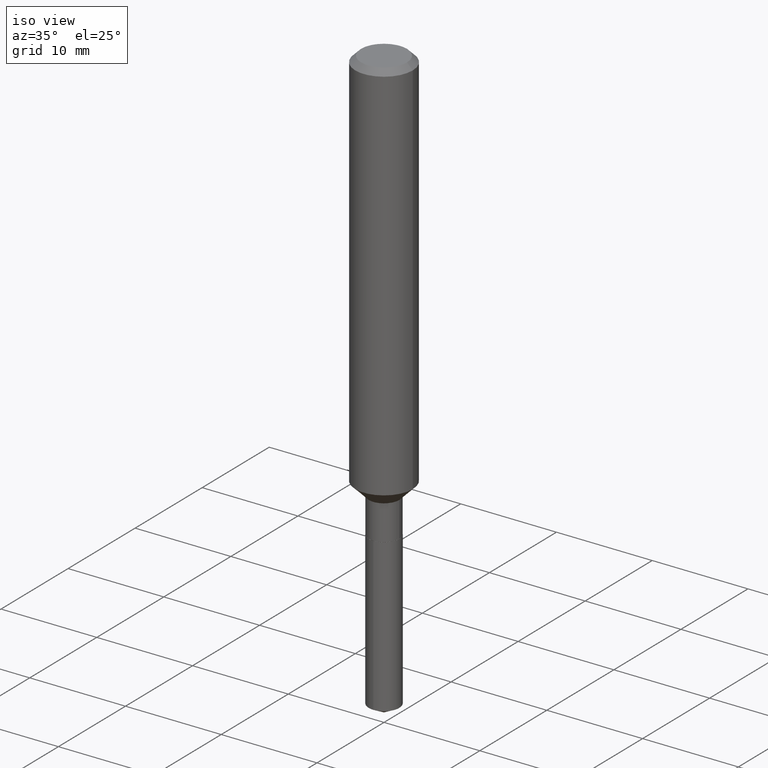
[diagram: clean part render]
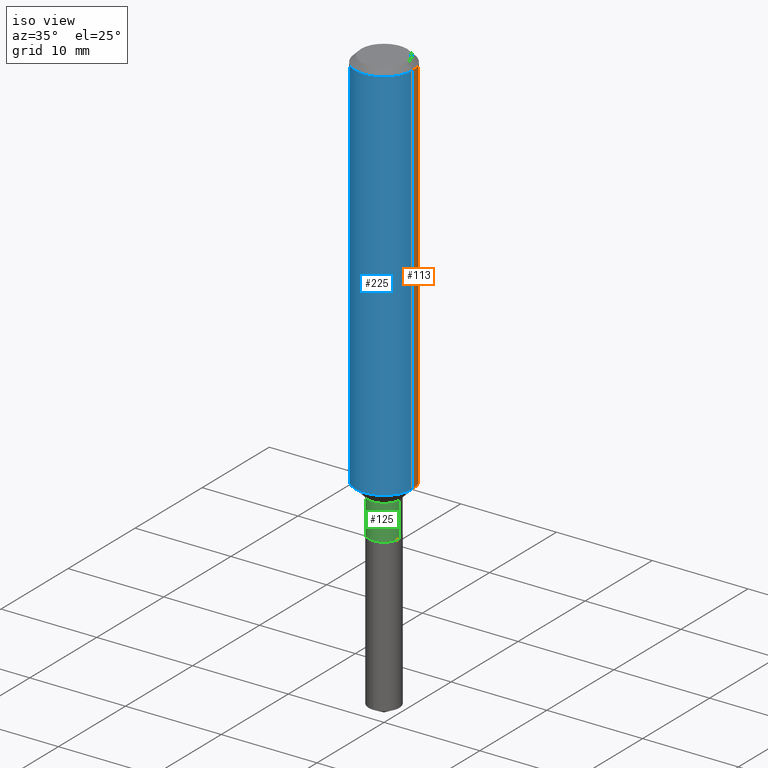
[diagram: same view with three faces highlighted in distinct colors, each labeled with its STEP entity id]
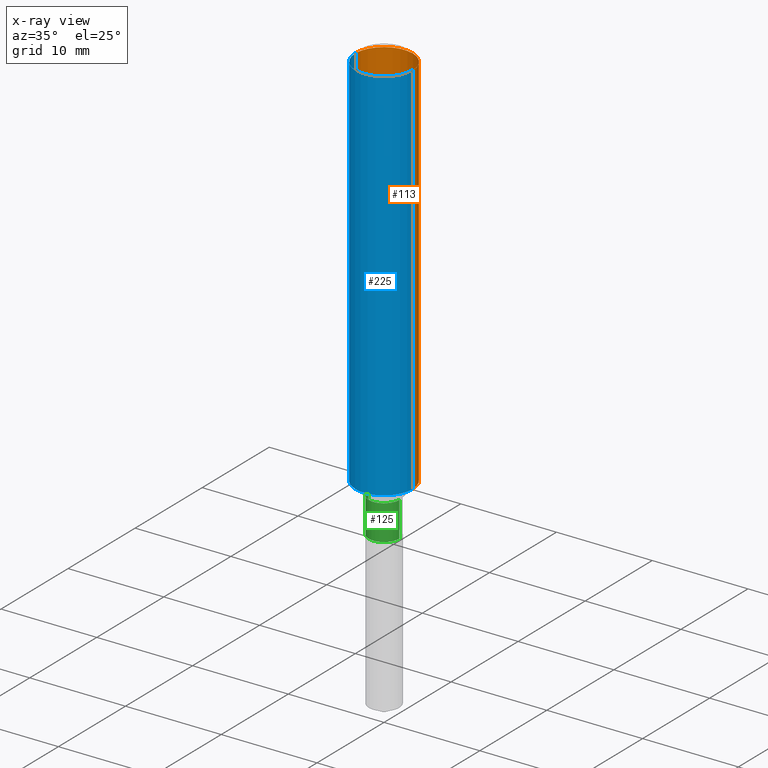
[diagram: x-ray of the same camera — body ghosted, the three highlighted faces saturated]
A machine part, iso view with three faces highlighted in distinct colors.
The next image is the same camera in x-ray (body ghosted, the three faces saturated) — at least one of them is partly hidden behind the body in this view.
Their STEP definitions:

[orange] entity #113 — the highlighted cylindrical surface (edge-blend (fillet) strip) has radius 2.9997 mm, axis along (-0, 0, 1).
#17 = CARTESIAN_POINT ( 'NONE',  ( 5.776197320209327532E-31, -8.246878922347559293E-17, -0.02362000000000014088 ) ) ;
#32 = VERTEX_POINT ( 'NONE', #395 ) ;
#42 = CARTESIAN_POINT ( 'NONE',  ( -0.1180999999999999966, -1.959480811030432098E-15, -0.02362000000000014088 ) ) ;
#47 = VECTOR ( 'NONE', #169, 39.37007874015748143 ) ;
#51 = ORIENTED_EDGE ( 'NONE', *, *, #286, .T. ) ;
#113 = ADVANCED_FACE ( 'NONE', ( #216 ), #428, .T. ) ;
#141 = ORIENTED_EDGE ( 'NONE', *, *, #407, .F. ) ;
#155 = LINE ( 'NONE', #436, #471 ) ;
#156 = CARTESIAN_POINT ( 'NONE',  ( 0.000000000000000000, 0.000000000000000000, 0.000000000000000000 ) ) ;
#167 = ORIENTED_EDGE ( 'NONE', *, *, #410, .T. ) ;
#169 = DIRECTION ( 'NONE',  ( -2.445468806185136877E-29, 3.491481338843145188E-15, 1.000000000000000000 ) ) ;
#175 = DIRECTION ( 'NONE',  ( 1.000000000000000000, -6.982962677686266711E-15, 4.876176775795936353E-29 ) ) ;
#213 = DIRECTION ( 'NONE',  ( -2.445468806185136597E-29, 3.491481338843145583E-15, 1.000000000000000000 ) ) ;
#216 = FACE_OUTER_BOUND ( 'NONE', #439, .T. ) ;
#230 = ORIENTED_EDGE ( 'NONE', *, *, #258, .F. ) ;
#258 = EDGE_CURVE ( 'NONE', #32, #452, #155, .T. ) ;
#261 = AXIS2_PLACEMENT_3D ( 'NONE', #458, #424, #386 ) ;
#262 = VERTEX_POINT ( 'NONE', #42 ) ;
#280 = CARTESIAN_POINT ( 'NONE',  ( -0.1181000000000000799, 8.391509709326788873E-16, -5.809262341591047988E-30 ) ) ;
#286 = EDGE_CURVE ( 'NONE', #32, #316, #455, .T. ) ;
#316 = VERTEX_POINT ( 'NONE', #321 ) ;
#321 = CARTESIAN_POINT ( 'NONE',  ( -0.1181000000000001632, -4.675643803770066936E-15, -1.579499999999999682 ) ) ;
#334 = CARTESIAN_POINT ( 'NONE',  ( 0.1180999999999999966, -9.071566814582237199E-16, -0.02362000000000014088 ) ) ;
#367 = AXIS2_PLACEMENT_3D ( 'NONE', #156, #443, #175 ) ;
#368 = AXIS2_PLACEMENT_3D ( 'NONE', #17, #213, #473 ) ;
#376 = CIRCLE ( 'NONE', #368, 0.1180999999999999966 ) ;
#386 = DIRECTION ( 'NONE',  ( 1.000000000000000000, -6.982962677686263555E-15, 0.000000000000000000 ) ) ;
#395 = CARTESIAN_POINT ( 'NONE',  ( 0.1181000000000001632, -6.339482666937496551E-15, -1.579499999999999682 ) ) ;
#396 = DIRECTION ( 'NONE',  ( -2.445468806185136877E-29, 3.491481338843145188E-15, 1.000000000000000000 ) ) ;
#407 = EDGE_CURVE ( 'NONE', #452, #262, #376, .T. ) ;
#410 = EDGE_CURVE ( 'NONE', #316, #262, #477, .T. ) ;
#424 = DIRECTION ( 'NONE',  ( -2.445468806185136597E-29, 3.491481338843145583E-15, 1.000000000000000000 ) ) ;
#428 = CYLINDRICAL_SURFACE ( 'NONE', #367, 0.1181000000000000799 ) ;
#436 = CARTESIAN_POINT ( 'NONE',  ( 0.1181000000000000799, -8.246878922347486570E-16, 5.758764772215004644E-30 ) ) ;
#439 = EDGE_LOOP ( 'NONE', ( #51, #167, #141, #230 ) ) ;
#443 = DIRECTION ( 'NONE',  ( -2.445468806185136597E-29, 3.491481338843145583E-15, 1.000000000000000000 ) ) ;
#452 = VERTEX_POINT ( 'NONE', #334 ) ;
#455 = CIRCLE ( 'NONE', #261, 0.1181000000000001632 ) ;
#458 = CARTESIAN_POINT ( 'NONE',  ( 3.862617979369422214E-29, -5.514794774702747499E-15, -1.579499999999999682 ) ) ;
#471 = VECTOR ( 'NONE', #396, 39.37007874015748143 ) ;
#473 = DIRECTION ( 'NONE',  ( 1.000000000000000000, -6.982962677686266711E-15, 0.000000000000000000 ) ) ;
#477 = LINE ( 'NONE', #280, #47 ) ;

[blue] entity #225 — the highlighted cylindrical surface (edge-blend (fillet) strip) has radius 2.9997 mm, axis along (-0, 0, 1).
#2 = ORIENTED_EDGE ( 'NONE', *, *, #110, .F. ) ;
#6 = CYLINDRICAL_SURFACE ( 'NONE', #25, 0.1181000000000000799 ) ;
#14 = AXIS2_PLACEMENT_3D ( 'NONE', #341, #267, #427 ) ;
#23 = CIRCLE ( 'NONE', #476, 0.1180999999999999966 ) ;
#25 = AXIS2_PLACEMENT_3D ( 'NONE', #121, #393, #305 ) ;
#32 = VERTEX_POINT ( 'NONE', #395 ) ;
#42 = CARTESIAN_POINT ( 'NONE',  ( -0.1180999999999999966, -1.959480811030432098E-15, -0.02362000000000014088 ) ) ;
#47 = VECTOR ( 'NONE', #169, 39.37007874015748143 ) ;
#96 = DIRECTION ( 'NONE',  ( -2.445468806185136597E-29, 3.491481338843145583E-15, 1.000000000000000000 ) ) ;
#110 = EDGE_CURVE ( 'NONE', #262, #452, #23, .T. ) ;
#116 = CIRCLE ( 'NONE', #14, 0.1181000000000001632 ) ;
#121 = CARTESIAN_POINT ( 'NONE',  ( 0.000000000000000000, 0.000000000000000000, 0.000000000000000000 ) ) ;
#132 = EDGE_LOOP ( 'NONE', ( #404, #179, #282, #2 ) ) ;
#155 = LINE ( 'NONE', #436, #471 ) ;
#169 = DIRECTION ( 'NONE',  ( -2.445468806185136877E-29, 3.491481338843145188E-15, 1.000000000000000000 ) ) ;
#179 = ORIENTED_EDGE ( 'NONE', *, *, #294, .T. ) ;
#189 = FACE_OUTER_BOUND ( 'NONE', #132, .T. ) ;
#225 = ADVANCED_FACE ( 'NONE', ( #189 ), #6, .T. ) ;
#253 = DIRECTION ( 'NONE',  ( 1.000000000000000000, -6.982962677686266711E-15, 0.000000000000000000 ) ) ;
#258 = EDGE_CURVE ( 'NONE', #32, #452, #155, .T. ) ;
#262 = VERTEX_POINT ( 'NONE', #42 ) ;
#267 = DIRECTION ( 'NONE',  ( -2.445468806185136597E-29, 3.491481338843145583E-15, 1.000000000000000000 ) ) ;
#280 = CARTESIAN_POINT ( 'NONE',  ( -0.1181000000000000799, 8.391509709326788873E-16, -5.809262341591047988E-30 ) ) ;
#282 = ORIENTED_EDGE ( 'NONE', *, *, #258, .T. ) ;
#294 = EDGE_CURVE ( 'NONE', #316, #32, #116, .T. ) ;
#305 = DIRECTION ( 'NONE',  ( 1.000000000000000000, -6.982962677686266711E-15, 4.876176775795936353E-29 ) ) ;
#316 = VERTEX_POINT ( 'NONE', #321 ) ;
#321 = CARTESIAN_POINT ( 'NONE',  ( -0.1181000000000001632, -4.675643803770066936E-15, -1.579499999999999682 ) ) ;
#334 = CARTESIAN_POINT ( 'NONE',  ( 0.1180999999999999966, -9.071566814582237199E-16, -0.02362000000000014088 ) ) ;
#341 = CARTESIAN_POINT ( 'NONE',  ( 3.862617979369422214E-29, -5.514794774702747499E-15, -1.579499999999999682 ) ) ;
#393 = DIRECTION ( 'NONE',  ( -2.445468806185136597E-29, 3.491481338843145583E-15, 1.000000000000000000 ) ) ;
#395 = CARTESIAN_POINT ( 'NONE',  ( 0.1181000000000001632, -6.339482666937496551E-15, -1.579499999999999682 ) ) ;
#396 = DIRECTION ( 'NONE',  ( -2.445468806185136877E-29, 3.491481338843145188E-15, 1.000000000000000000 ) ) ;
#404 = ORIENTED_EDGE ( 'NONE', *, *, #410, .F. ) ;
#406 = CARTESIAN_POINT ( 'NONE',  ( 5.776197320209327532E-31, -8.246878922347559293E-17, -0.02362000000000014088 ) ) ;
#410 = EDGE_CURVE ( 'NONE', #316, #262, #477, .T. ) ;
#427 = DIRECTION ( 'NONE',  ( 1.000000000000000000, -6.982962677686263555E-15, 0.000000000000000000 ) ) ;
#436 = CARTESIAN_POINT ( 'NONE',  ( 0.1181000000000000799, -8.246878922347486570E-16, 5.758764772215004644E-30 ) ) ;
#452 = VERTEX_POINT ( 'NONE', #334 ) ;
#471 = VECTOR ( 'NONE', #396, 39.37007874015748143 ) ;
#476 = AXIS2_PLACEMENT_3D ( 'NONE', #406, #96, #253 ) ;
#477 = LINE ( 'NONE', #280, #47 ) ;

[green] entity #125 — the highlighted cylindrical surface (edge-blend (fillet) strip) has radius 1.6002 mm, axis along (-0, 0, 1).
#1 = LINE ( 'NONE', #91, #315 ) ;
#4 = DIRECTION ( 'NONE',  ( 1.000000000000000000, -6.982962677686266711E-15, 4.876176775795936353E-29 ) ) ;
#9 = DIRECTION ( 'NONE',  ( -2.445468806185136877E-29, 3.491481338843145188E-15, 1.000000000000000000 ) ) ;
#12 = ORIENTED_EDGE ( 'NONE', *, *, #181, .F. ) ;
#39 = VERTEX_POINT ( 'NONE', #153 ) ;
#48 = VERTEX_POINT ( 'NONE', #264 ) ;
#57 = FACE_OUTER_BOUND ( 'NONE', #454, .T. ) ;
#91 = CARTESIAN_POINT ( 'NONE',  ( -0.06299999999999998657, 4.476419235288630216E-16, -3.098929106860590303E-30 ) ) ;
#93 = CARTESIAN_POINT ( 'NONE',  ( 4.350489006203357517E-29, -6.211345301801955822E-15, -1.778999999999999693 ) ) ;
#107 = CYLINDRICAL_SURFACE ( 'NONE', #158, 0.06299999999999998657 ) ;
#124 = DIRECTION ( 'NONE',  ( -2.445468806185136597E-29, 3.491481338843145583E-15, 1.000000000000000000 ) ) ;
#125 = ADVANCED_FACE ( 'NONE', ( #57 ), #107, .T. ) ;
#149 = AXIS2_PLACEMENT_3D ( 'NONE', #157, #232, #347 ) ;
#152 = DIRECTION ( 'NONE',  ( -2.445468806185136877E-29, 3.491481338843145188E-15, 1.000000000000000000 ) ) ;
#153 = CARTESIAN_POINT ( 'NONE',  ( 0.06300000000000000044, -6.651271950496190499E-15, -1.778999999999999693 ) ) ;
#157 = CARTESIAN_POINT ( 'NONE',  ( 3.997363310590223377E-29, -5.707175396473004292E-15, -1.634599999999999609 ) ) ;
#158 = AXIS2_PLACEMENT_3D ( 'NONE', #204, #124, #4 ) ;
#159 = ORIENTED_EDGE ( 'NONE', *, *, #371, .T. ) ;
#168 = DIRECTION ( 'NONE',  ( -2.445468806185136597E-29, 3.491481338843145583E-15, 1.000000000000000000 ) ) ;
#170 = CARTESIAN_POINT ( 'NONE',  ( -0.06299999999999998657, -5.511618425608616937E-15, -1.634599999999999609 ) ) ;
#181 = EDGE_CURVE ( 'NONE', #429, #48, #183, .T. ) ;
#183 = CIRCLE ( 'NONE', #149, 0.06299999999999998657 ) ;
#204 = CARTESIAN_POINT ( 'NONE',  ( 0.000000000000000000, 0.000000000000000000, 0.000000000000000000 ) ) ;
#214 = EDGE_CURVE ( 'NONE', #462, #429, #1, .T. ) ;
#218 = EDGE_CURVE ( 'NONE', #39, #48, #381, .T. ) ;
#232 = DIRECTION ( 'NONE',  ( -2.445468806185136597E-29, 3.491481338843145583E-15, 1.000000000000000000 ) ) ;
#243 = CIRCLE ( 'NONE', #463, 0.06300000000000000044 ) ;
#264 = CARTESIAN_POINT ( 'NONE',  ( 0.06299999999999998657, -6.147102045167238969E-15, -1.634599999999999609 ) ) ;
#297 = ORIENTED_EDGE ( 'NONE', *, *, #214, .F. ) ;
#315 = VECTOR ( 'NONE', #9, 39.37007874015748143 ) ;
#347 = DIRECTION ( 'NONE',  ( 1.000000000000000000, -6.982962677686272233E-15, 0.000000000000000000 ) ) ;
#371 = EDGE_CURVE ( 'NONE', #462, #39, #243, .T. ) ;
#381 = LINE ( 'NONE', #390, #449 ) ;
#389 = ORIENTED_EDGE ( 'NONE', *, *, #218, .T. ) ;
#390 = CARTESIAN_POINT ( 'NONE',  ( 0.06299999999999998657, -4.399266486942347259E-16, 3.071991368751439423E-30 ) ) ;
#408 = DIRECTION ( 'NONE',  ( 1.000000000000000000, -6.982962677686270655E-15, 0.000000000000000000 ) ) ;
#429 = VERTEX_POINT ( 'NONE', #170 ) ;
#448 = CARTESIAN_POINT ( 'NONE',  ( -0.06300000000000001432, -5.511618425608616937E-15, -1.778999999999999693 ) ) ;
#449 = VECTOR ( 'NONE', #152, 39.37007874015748143 ) ;
#454 = EDGE_LOOP ( 'NONE', ( #297, #159, #389, #12 ) ) ;
#462 = VERTEX_POINT ( 'NONE', #448 ) ;
#463 = AXIS2_PLACEMENT_3D ( 'NONE', #93, #168, #408 ) ;